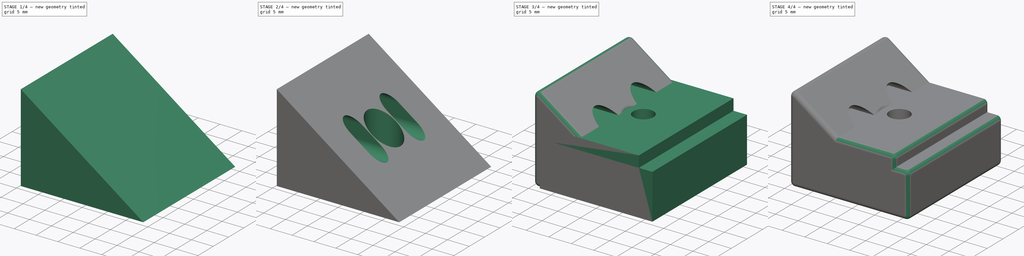
[diagram: build sequence overview — one tinted view per stage of 4, left to right]
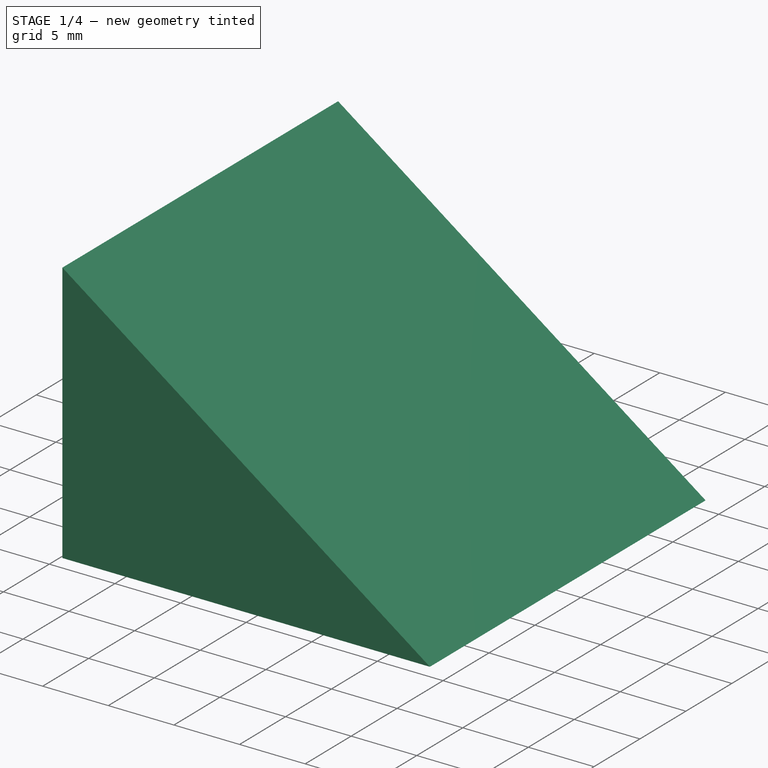
[diagram: stage 1 of 4 — iso view after this stage's code; geometry added in this stage tinted green]
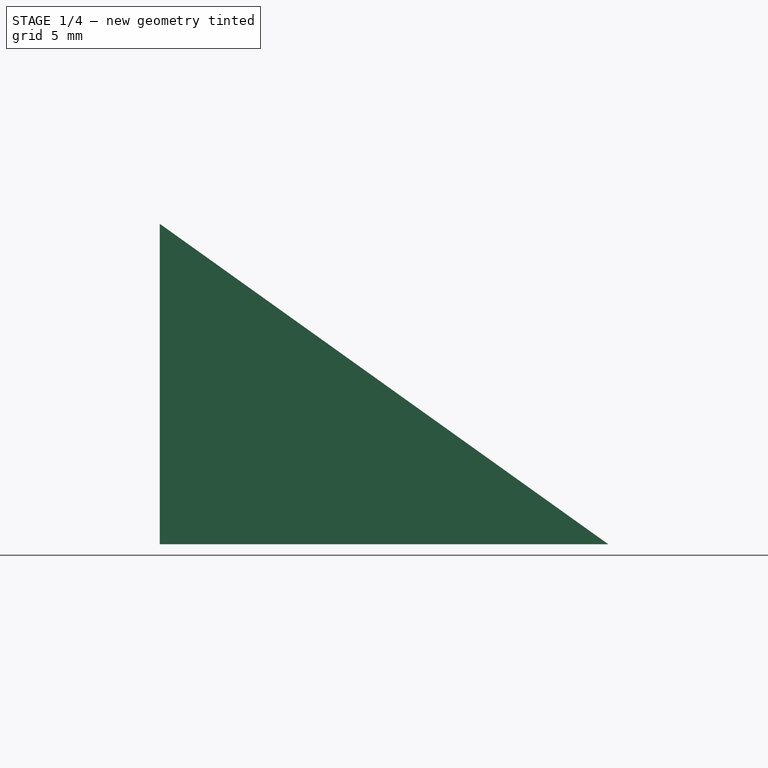
[diagram: stage 1 of 4 — front view after this stage's code; geometry added in this stage tinted green]
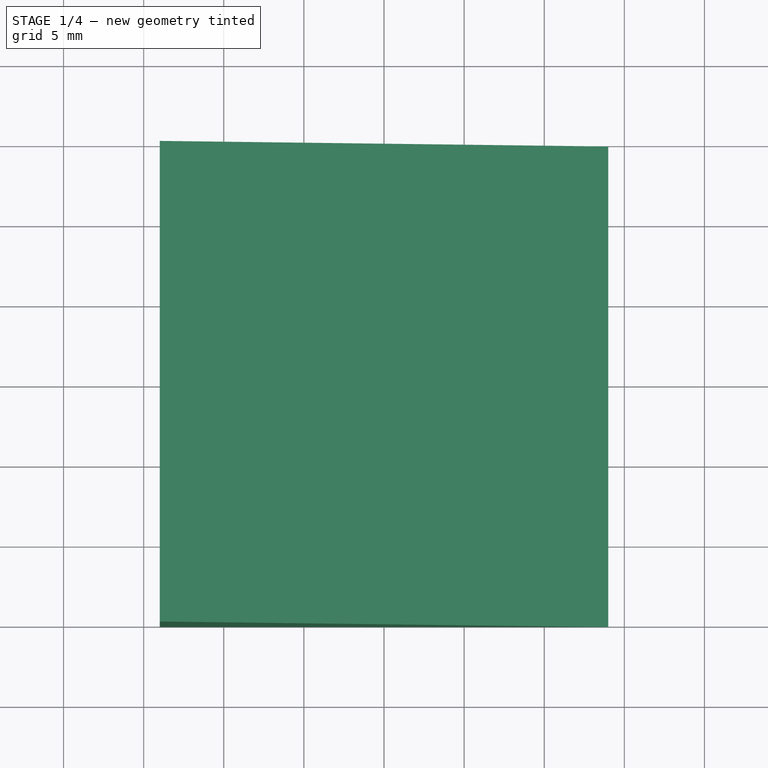
[diagram: stage 1 of 4 — top view after this stage's code; geometry added in this stage tinted green]
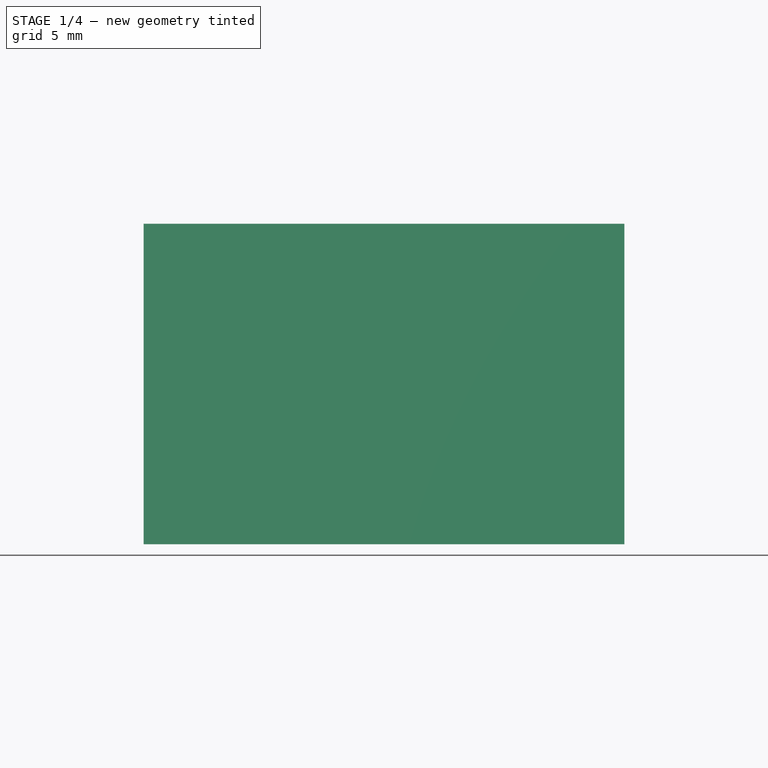
[diagram: stage 1 of 4 — right view after this stage's code; geometry added in this stage tinted green]
FCSTD DOCUMENT  (FreeCAD 0.18.3R)
Label: ShadeHolder
License: All rights reserved
LicenseURL: http://en.wikipedia.org/wiki/All_rights_reserved
objects: Sketcher::SketchObject×8, PartDesign::Pocket×6, PartDesign::Pad×2, PartDesign::Fillet×2, PartDesign::Body×2, Spreadsheet::Sheet×1, App::Part×1
note: 28 computed .brp shape members not serialized (recipe doc carries the construction recipe); baked Part::Feature solids carry a one-line shape summary decoded from their .brp

FEATURE [Sketcher::SketchObject] Sketch
  MapMode = 5
  Placement = pos=(0,0,0) rot=(1,0,0;1.5708rad)
  Support = -> [XZ_Plane]
  sketch-geometry (11):
    g0: LineSegment StartX=-9.5 StartY=12.5 StartZ=0 EndX=9.5 EndY=12.5 EndZ=0
    g1: LineSegment StartX=9.5 StartY=12.5 StartZ=0 EndX=9.5 EndY=10 EndZ=0
    g2: LineSegment StartX=9.5 StartY=10 StartZ=0 EndX=12.5 EndY=10 EndZ=0
    g3: LineSegment StartX=12.5 StartY=10 StartZ=0 EndX=12.5 EndY=0 EndZ=0
    g4: LineSegment StartX=12.5 StartY=0 StartZ=0 EndX=-12.5 EndY=0 EndZ=0
    g5: LineSegment StartX=-12.5 StartY=0 StartZ=0 EndX=-12.5 EndY=10 EndZ=0
    g6: LineSegment StartX=-12.5 StartY=10 StartZ=0 EndX=-9.5 EndY=10 EndZ=0
    g7: LineSegment StartX=-9.5 StartY=10 StartZ=0 EndX=-9.5 EndY=12.5 EndZ=0
    g8: LineSegment [constr] StartX=-12.5 StartY=10 StartZ=0 EndX=-12.5 EndY=12.5 EndZ=0
    g9: LineSegment [constr] StartX=-12.5 StartY=12.5 StartZ=0 EndX=-9.5 EndY=12.5 EndZ=0
    g10: GeomPoint X=0 Y=0 Z=0
  constraints (30):
    c: Horizontal(g0)
    c: Coincident(g0,g1)
    c: Vertical(g1)
    c: Coincident(g1,g2)
    c: Horizontal(g2)
    c: Coincident(g2,g3)
    c: Vertical(g3)
    c: Coincident(g3,g4)
    c: Horizontal(g4)
    c: Coincident(g4,g5)
    c: Vertical(g5)
    c: Coincident(g5,g6)
    c: Horizontal(g6)
    c: Coincident(g6,g7)
    c: Coincident(g7,g0)
    c: Vertical(g7)
    c: Equal(g6,g2)
    c: DistanceX(g0,g0) = 19
    c: DistanceX(g5,g2) = 25
    c: DistanceY(g1,g1) = 2.5
    c: Equal(g1,g7)
    c: DistanceY(g5,g5) = 10
    c: Coincident(g5,g8)
    c: Vertical(g8)
    c: Coincident(g8,g9)
    c: Coincident(g9,g0)
    c: Horizontal(g9)
    c: Symmetric(g3,g4,g10)
    c: DistanceY(g3,g0) = 12.5  'Height'
    c: Coincident(g10,g-1)  '__ANCHOR__'
FEATURE [PartDesign::Pad] Pad
  Length = 30
  Length2 = 100
  Midplane = true
  Placement = pos=(0,0,0) rot=(1,0,0;1.5708rad)
  Profile = -> Sketch
  Type = 0
FEATURE [PartDesign::Body] Body
  Group = -> [Sketch,Pad,Sketch001,Pocket,Sketch002,Pocket001,Fillet]
  Origin = -> Origin
  Tip = -> Fillet
FEATURE [Sketcher::SketchObject] Sketch003
  MapMode = 5
  Placement = pos=(0,0,0) rot=(1,0,0;1.5708rad)
  Support = -> [XZ_Plane002]
  sketch-geometry (3):
    g0: LineSegment StartX=-14 StartY=0 StartZ=0 EndX=14 EndY=0 EndZ=0
    g1: LineSegment StartX=14 StartY=0 StartZ=0 EndX=-14 EndY=20 EndZ=0
    g2: LineSegment StartX=-14 StartY=20 StartZ=0 EndX=-14 EndY=0 EndZ=0
  constraints (8):
    c: Horizontal(g0)
    c: Coincident(g0,g1)
    c: Coincident(g1,g2)
    c: Coincident(g2,g0)
    c: Vertical(g2)
    c: DistanceX(g0,g0) = 28  'Length'
    c: DistanceY(g2,g2) = 20  'Height'
    c: Symmetric(g0,g0,g-1)  '__ANCHOR__'
FEATURE [PartDesign::Pad] Pad001
  Length = 30
  Length2 = 100
  Midplane = true
  Placement = pos=(0,0,0) rot=(1,0,0;1.5708rad)
  Profile = -> Sketch003
  Type = 0
  expr: Length = Pad.Length
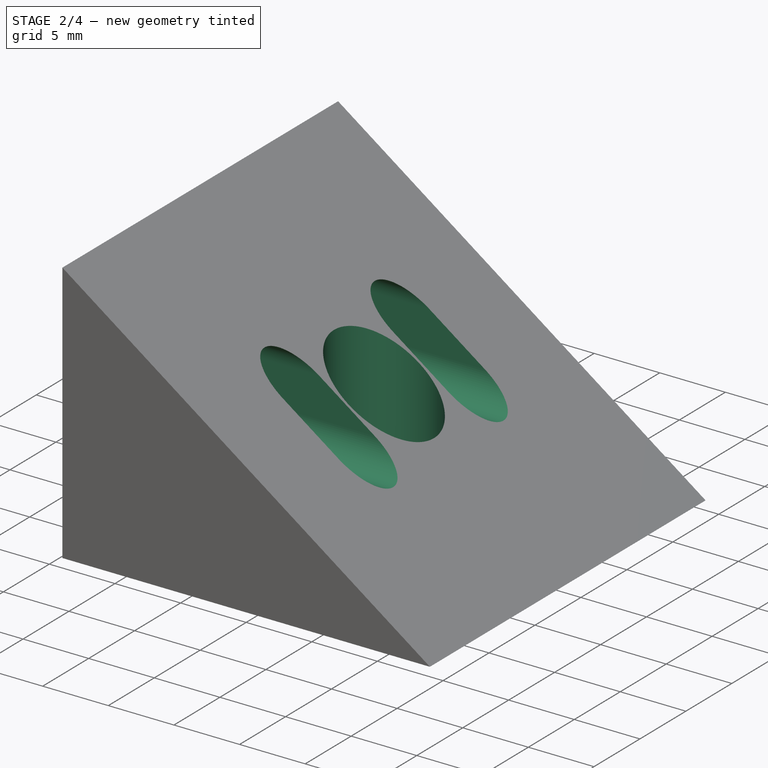
[diagram: stage 2 of 4 — iso view after this stage's code; geometry added in this stage tinted green]
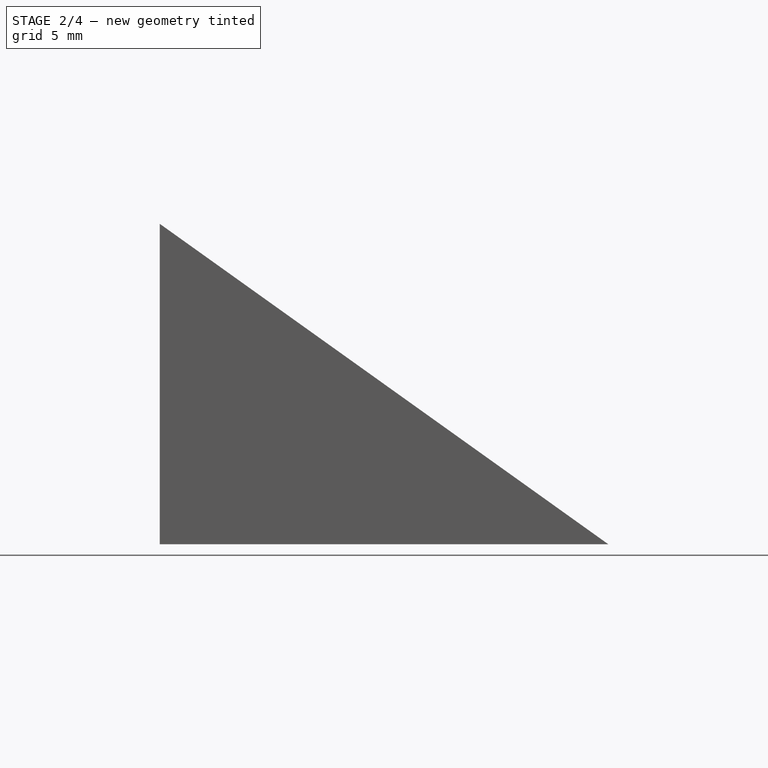
[diagram: stage 2 of 4 — front view after this stage's code; geometry added in this stage tinted green]
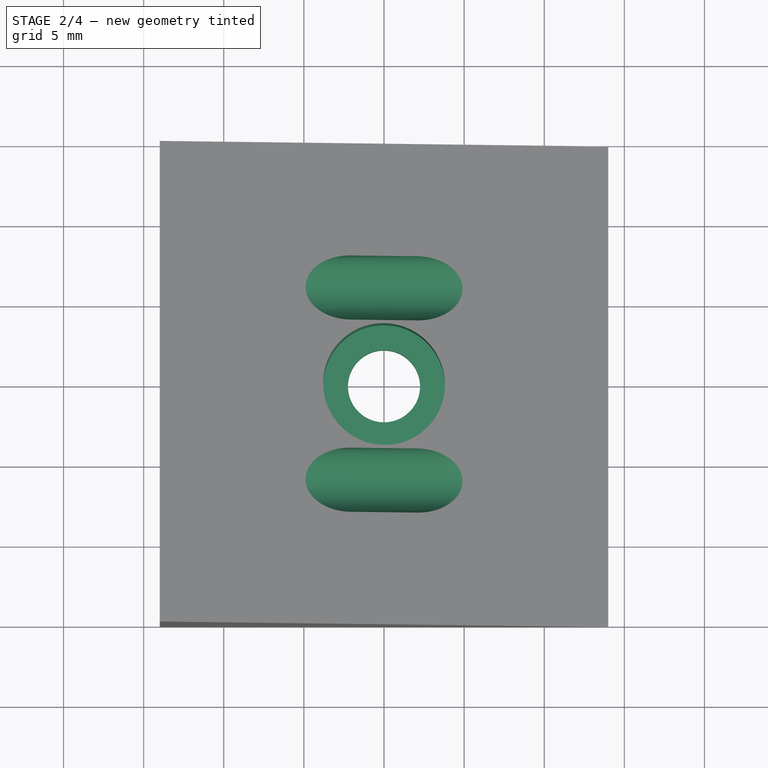
[diagram: stage 2 of 4 — top view after this stage's code; geometry added in this stage tinted green]
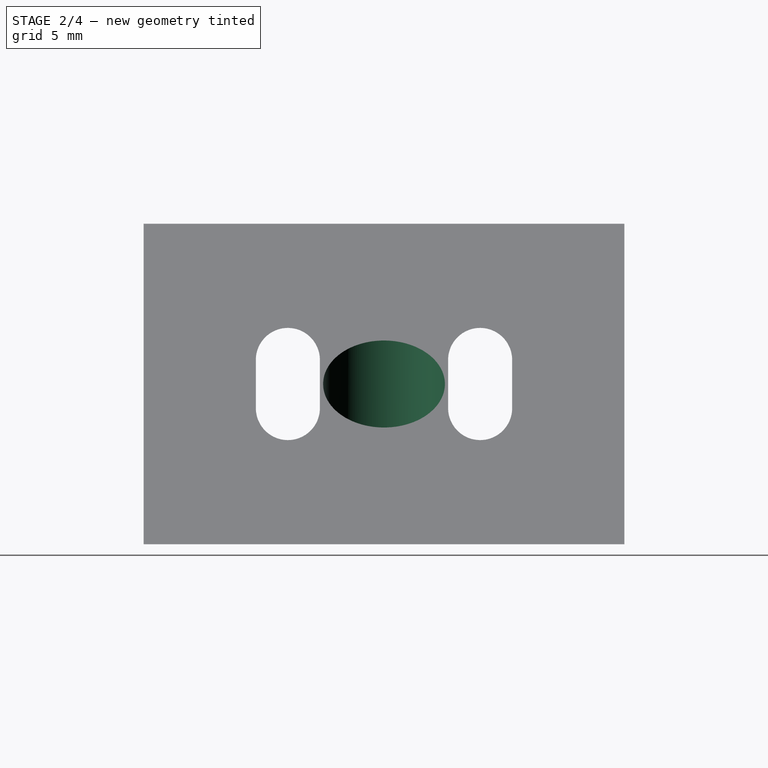
[diagram: stage 2 of 4 — right view after this stage's code; geometry added in this stage tinted green]
FEATURE [Sketcher::SketchObject] Sketch004
  MapMode = 5
  Support = -> [XY_Plane002]
  expr: Constraints[1] = Screws.M4Radius
  sketch-geometry (1):
    g0: Circle CenterX=0 CenterY=0 CenterZ=0 NormalX=0 NormalY=0 NormalZ=1 AngleXU=0 Radius=2.25
  constraints (2):
    c: Coincident(g0,g-1)
    c: Radius(g0) = 2.25
FEATURE [PartDesign::Pocket] Pocket002
  BaseFeature = -> Pad001
  Length = 5
  Length2 = 100
  Placement = pos=(0,0,0) rot=(1,0,0;1.5708rad)
  Profile = -> Sketch004
  Reversed = true
  Type = 1
FEATURE [Sketcher::SketchObject] Sketch005
  AttachmentOffset = pos=(0,0,2) rot=(0,0,1;0rad)
  MapMode = 5
  Placement = pos=(0,0,2) rot=(0,0,1;0rad)
  Support = -> [XY_Plane002]
  expr: Constraints[1] = Screws.M4HeadRadius
  sketch-geometry (1):
    g0: Circle CenterX=0 CenterY=0 CenterZ=0 NormalX=0 NormalY=0 NormalZ=1 AngleXU=0 Radius=3.8
  constraints (2):
    c: Coincident(g0,g-1)
    c: Radius(g0) = 3.8
FEATURE [PartDesign::Pocket] Pocket003
  BaseFeature = -> Pocket002
  Length = 5
  Length2 = 100
  Placement = pos=(0,0,0) rot=(1,0,0;1.5708rad)
  Profile = -> Sketch005
  Reversed = true
  Type = 1
FEATURE [Sketcher::SketchObject] Sketch006
  MapMode = 5
  Placement = pos=(0,0,0) rot=(0.57735,0.57735,0.57735;2.0944rad)
  Support = -> [YZ_Plane002]
  expr: Constraints.Offset = Sketch003.Constraints.Height / 2
  sketch-geometry (11):
    g0: LineSegment [constr] StartX=-6 StartY=10 StartZ=0 EndX=6 EndY=10 EndZ=0
    g1: ArcOfCircle CenterX=-6 CenterY=11.5 CenterZ=0 NormalX=0 NormalY=0 NormalZ=1 AngleXU=0 Radius=2 StartAngle=0 EndAngle=3.14159
    g2: ArcOfCircle CenterX=-6 CenterY=8.5 CenterZ=0 NormalX=0 NormalY=0 NormalZ=1 AngleXU=0 Radius=2 StartAngle=3.14159 EndAngle=6.28319
    g3: LineSegment StartX=-8 StartY=11.5 StartZ=0 EndX=-8 EndY=8.5 EndZ=0
    g4: LineSegment StartX=-4 StartY=11.5 StartZ=0 EndX=-4 EndY=8.5 EndZ=0
    g5: ArcOfCircle CenterX=6 CenterY=11.5 CenterZ=0 NormalX=0 NormalY=0 NormalZ=1 AngleXU=0 Radius=2 StartAngle=0 EndAngle=3.14159
    g6: ArcOfCircle CenterX=6 CenterY=8.5 CenterZ=0 NormalX=0 NormalY=0 NormalZ=1 AngleXU=0 Radius=2 StartAngle=3.14159 EndAngle=6.28319
    g7: LineSegment StartX=4 StartY=11.5 StartZ=0 EndX=4 EndY=8.5 EndZ=0
    g8: LineSegment StartX=8 StartY=11.5 StartZ=0 EndX=8 EndY=8.5 EndZ=0
    g9: GeomPoint X=-6 Y=10 Z=0
    g10: GeomPoint X=6 Y=10 Z=0
  constraints (23):
    c: DistanceX(g0,g0) = 12  'Distance'
    c: Symmetric(g0,g0,g-2)
    c: Tangent(g1,g4) = 1.5708
    c: Tangent(g1,g3) = -1.5708
    c: Tangent(g3,g2) = -1.5708
    c: Tangent(g4,g2) = 1.5708
    c: Vertical(g3)
    c: Equal(g1,g2)
    c: Tangent(g5,g8) = 1.5708
    c: Tangent(g5,g7) = -1.5708
    c: Tangent(g7,g6) = -1.5708
    c: Tangent(g8,g6) = 1.5708
    c: Vertical(g7)
    c: Equal(g5,g6)
    c: Equal(g1,g5)
    c: Equal(g7,g4)
    c: Symmetric(g6,g5,g10)
    c: Symmetric(g1,g2,g9)
    c: Coincident(g9,g0)
    c: Coincident(g10,g0)
    c: Radius(g5) = 2
    c: DistanceY(g8,g8) = 3  'HoleHeight'
    c: DistanceY(g-1,g9) = 10  'Offset'
FEATURE [PartDesign::Pocket] Pocket004
  BaseFeature = -> Pocket003
  Length = 5
  Length2 = 100
  Midplane = true
  Placement = pos=(0,0,0) rot=(1,0,0;1.5708rad)
  Profile = -> Sketch006
  Type = 1
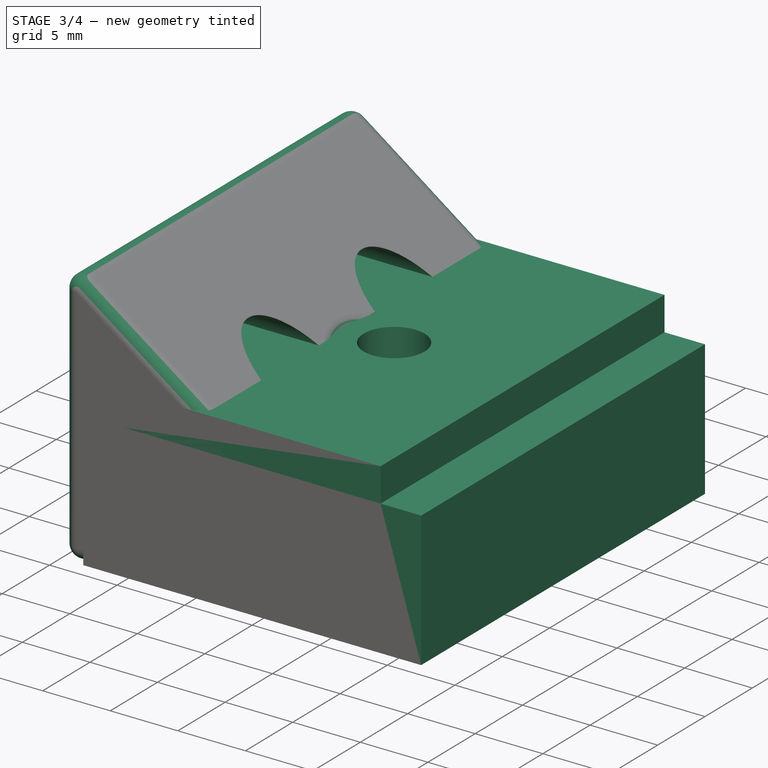
[diagram: stage 3 of 4 — iso view after this stage's code; geometry added in this stage tinted green]
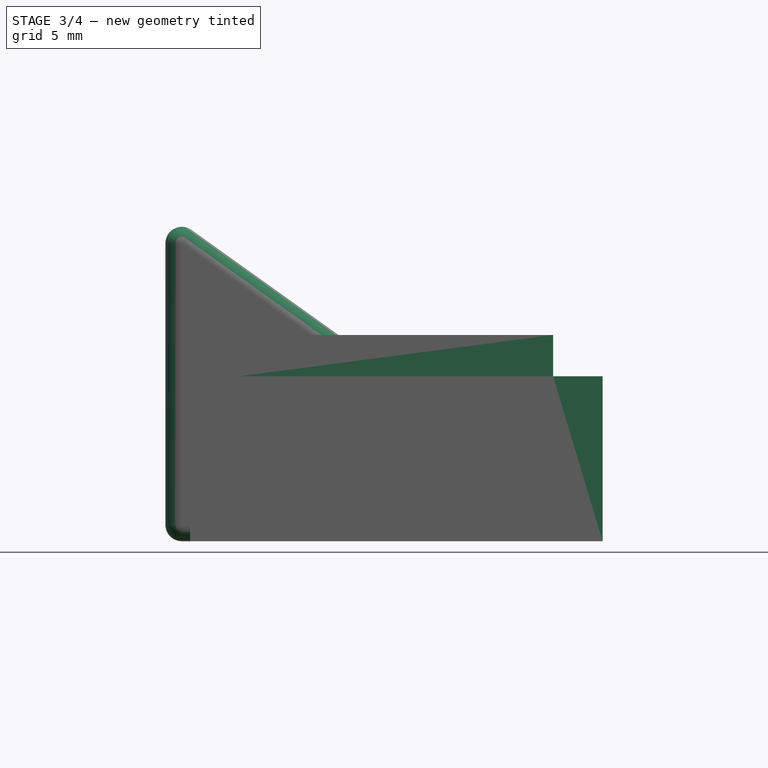
[diagram: stage 3 of 4 — front view after this stage's code; geometry added in this stage tinted green]
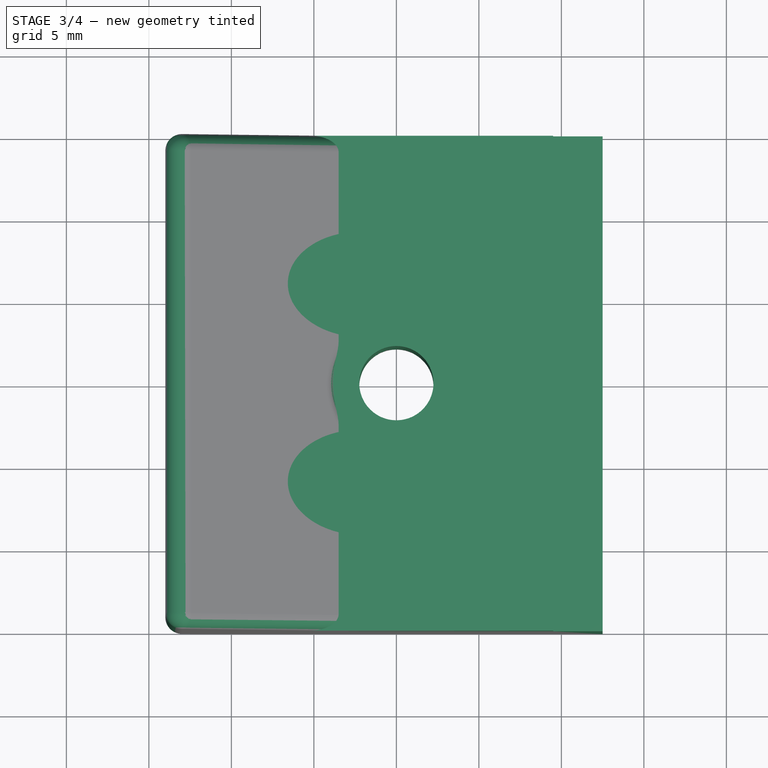
[diagram: stage 3 of 4 — top view after this stage's code; geometry added in this stage tinted green]
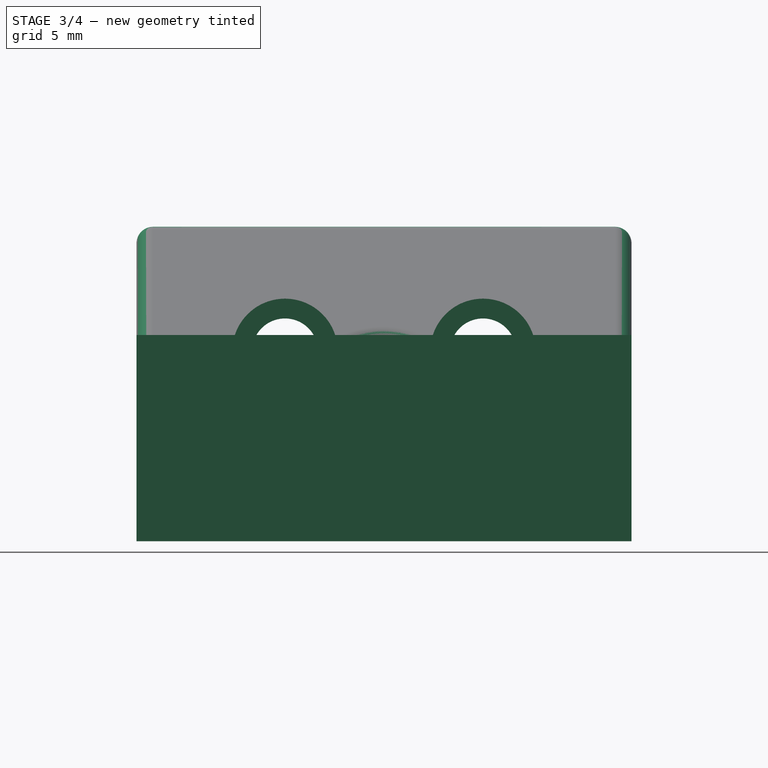
[diagram: stage 3 of 4 — right view after this stage's code; geometry added in this stage tinted green]
FEATURE [Sketcher::SketchObject] Sketch001
  MapMode = 5
  Support = -> [XY_Plane]
  expr: Constraints[1] = Screws.M4Radius
  sketch-geometry (1):
    g0: Circle CenterX=0 CenterY=0 CenterZ=0 NormalX=0 NormalY=0 NormalZ=1 AngleXU=0 Radius=2.25
  constraints (2):
    c: Coincident(g0,g-1)
    c: Radius(g0) = 2.25
FEATURE [Spreadsheet::Sheet] Spreadsheet001  label="Screws"
  cells = B2=M3Radius; C2(M3Radius)==1.75mm; B3=M3HeadRadius; C3(M3HeadRadius)==3mm; B4=M3HeadHeight; C4(M3HeadHeight)==3.4mm; B5=M3NutRadius; C5(M3NutRadius)==3.4mm; B6=M3NutHeight; C6(M3NutHeight)==2.6mm; B7=M3NutDuctWidth; C7(M3NutDuctWidth)==6mm; B8=M4Radius; C8(M4Radius)==2.25mm; B9=M4HeadRadius; C9(M4HeadRadius)==3.8mm; B10=M4HeadHeight; C10(M4HeadHeight)==4mm; B11=M4NutRadius; C11(M4NutRadius)==4.2mm; B12=M4NutHeight; C12(M4NutHeight)==3.3mm; B13=M5Radius; C13(M5Radius)==2.66mm; B14=M5HeadRadius; C14(M5HeadRadius)==4.5mm; B15=M5HeadHeight; C15(M5HeadHeight)==5mm; B16=M5NutRadius; C16(M5NutRadius)==4.75mm; B17=M5NutHeight; C17(M5NutHeight)==4mm
FEATURE [PartDesign::Pocket] Pocket
  BaseFeature = -> Pad
  Length = 5
  Length2 = 100
  Placement = pos=(0,0,0) rot=(1,0,0;1.5708rad)
  Profile = -> Sketch001
  Reversed = true
  Type = 1
FEATURE [Sketcher::SketchObject] Sketch007
  AttachmentOffset = pos=(0,0,-12) rot=(0,0,1;0rad)
  MapMode = 5
  Placement = pos=(-12,2.7e-15,-2.7e-15) rot=(0.57735,0.57735,0.57735;2.0944rad)
  Support = -> [YZ_Plane002]
  expr: AttachmentOffset.Base.z = -Sketch003.Constraints.Length / 2 + 2mm
  expr: Constraints[0] = Sketch006.Constraints.Distance
  expr: Constraints.HH = Sketch006.Constraints.HoleHeight
  expr: Constraints[22] = Sketch006.Constraints.Offset
  sketch-geometry (11):
    g0: LineSegment [constr] StartX=-6 StartY=10 StartZ=0 EndX=6 EndY=10 EndZ=0
    g1: ArcOfCircle CenterX=-6 CenterY=11.5 CenterZ=0 NormalX=0 NormalY=0 NormalZ=1 AngleXU=0 Radius=3.2 StartAngle=0 EndAngle=3.14159
    g2: ArcOfCircle CenterX=-6 CenterY=8.5 CenterZ=0 NormalX=0 NormalY=0 NormalZ=1 AngleXU=0 Radius=3.2 StartAngle=3.14159 EndAngle=6.28319
    g3: LineSegment StartX=-9.2 StartY=11.5 StartZ=0 EndX=-9.2 EndY=8.5 EndZ=0
    g4: LineSegment StartX=-2.8 StartY=11.5 StartZ=0 EndX=-2.8 EndY=8.5 EndZ=0
    g5: ArcOfCircle CenterX=6 CenterY=11.5 CenterZ=0 NormalX=0 NormalY=0 NormalZ=1 AngleXU=0 Radius=3.2 StartAngle=1e-16 EndAngle=3.14159
    g6: ArcOfCircle CenterX=6 CenterY=8.5 CenterZ=0 NormalX=0 NormalY=0 NormalZ=1 AngleXU=0 Radius=3.2 StartAngle=3.14159 EndAngle=6.28319
    g7: LineSegment StartX=2.8 StartY=11.5 StartZ=0 EndX=2.8 EndY=8.5 EndZ=0
    g8: LineSegment StartX=9.2 StartY=11.5 StartZ=0 EndX=9.2 EndY=8.5 EndZ=0
    g9: GeomPoint X=-6 Y=10 Z=0
    g10: GeomPoint X=6 Y=10 Z=0
  constraints (23):
    c: DistanceX(g0,g0) = 12
    c: Symmetric(g0,g0,g-2)
    c: Tangent(g1,g4) = 1.5708
    c: Tangent(g1,g3) = -1.5708
    c: Tangent(g3,g2) = -1.5708
    c: Tangent(g4,g2) = 1.5708
    c: Vertical(g3)
    c: Equal(g1,g2)
    c: Tangent(g5,g8) = 1.5708
    c: Tangent(g5,g7) = -1.5708
    c: Tangent(g7,g6) = -1.5708
    c: Tangent(g8,g6) = 1.5708
    c: Vertical(g7)
    c: Equal(g5,g6)
    c: Equal(g1,g5)
    c: Equal(g7,g4)
    c: Symmetric(g6,g5,g10)
    c: Symmetric(g1,g2,g9)
    c: Coincident(g9,g0)
    c: Coincident(g10,g0)
    c: Radius(g5) = 3.2
    c: DistanceY(g8,g8) = 3  'HH'
    c: DistanceY(g-1,g9) = 10
FEATURE [PartDesign::Pocket] Pocket005
  BaseFeature = -> Pocket004
  Length = 5
  Length2 = 100
  Placement = pos=(0,0,0) rot=(1,0,0;1.5708rad)
  Profile = -> Sketch007
  Refine = true
  Reversed = true
  Type = 1
FEATURE [PartDesign::Fillet] Fillet001
  Base = -> Pocket005 [Face4,Face3,Edge6,Edge4,Edge1,Edge23,Edge27]
  BaseFeature = -> Pocket005
  Placement = pos=(0,0,0) rot=(1,0,0;1.5708rad)
  Radius = 1
FEATURE [PartDesign::Body] Body001
  Group = -> [Sketch003,Pad001,Sketch004,Pocket002,Sketch005,Pocket003,Sketch006,Pocket004,Sketch007,Pocket005,Fillet001]
  Origin = -> Origin002
  Placement = pos=(0,0,12.5) rot=(0,0,1;0rad)
  Tip = -> Fillet001
  expr: Placement.Base.z = Sketch.Constraints.Height
FEATURE [App::Part] Part
  Group = -> [Body,Body001]
  Origin = -> Origin001
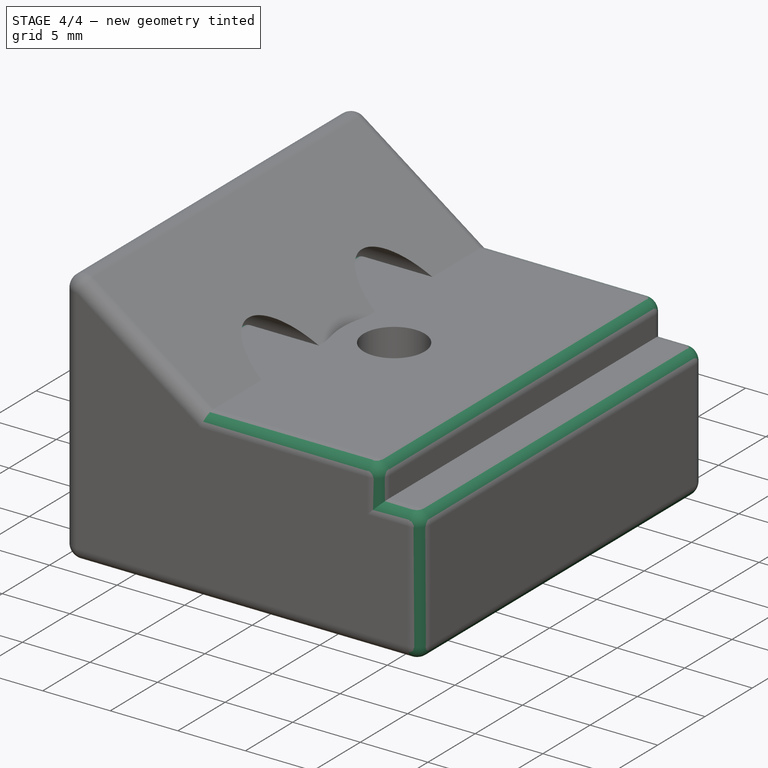
[diagram: stage 4 of 4 — iso view after this stage's code; geometry added in this stage tinted green]
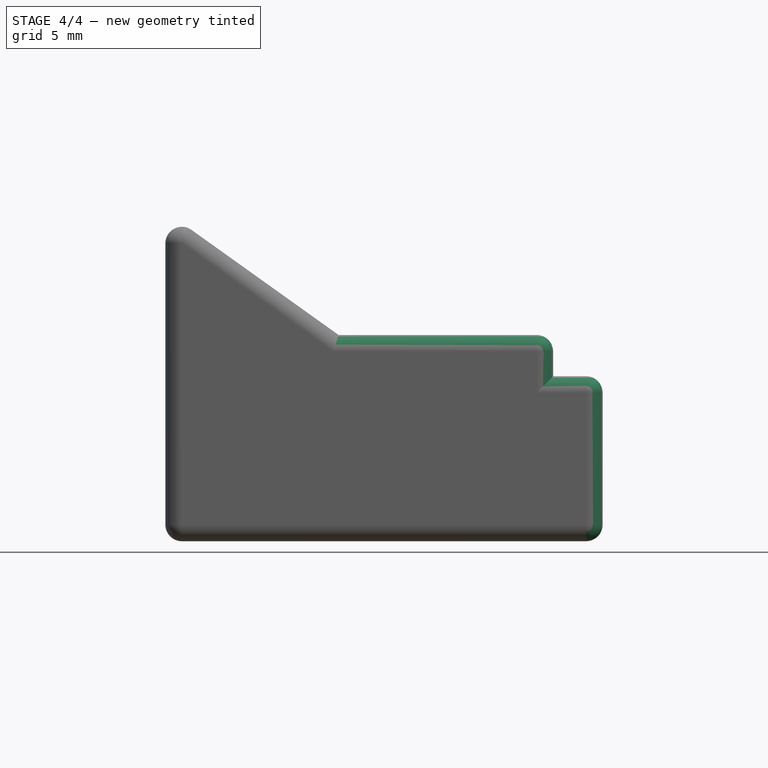
[diagram: stage 4 of 4 — front view after this stage's code; geometry added in this stage tinted green]
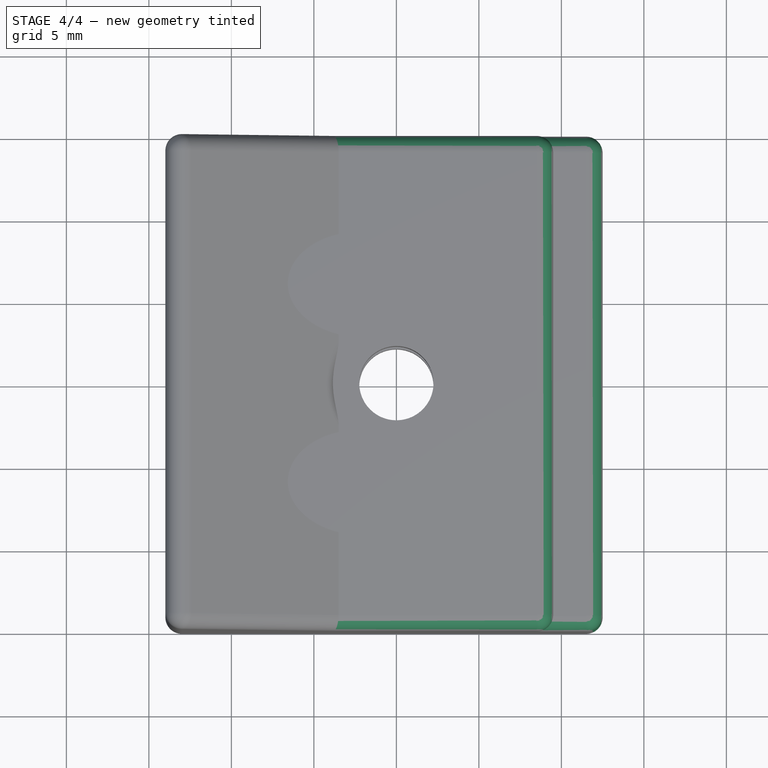
[diagram: stage 4 of 4 — top view after this stage's code; geometry added in this stage tinted green]
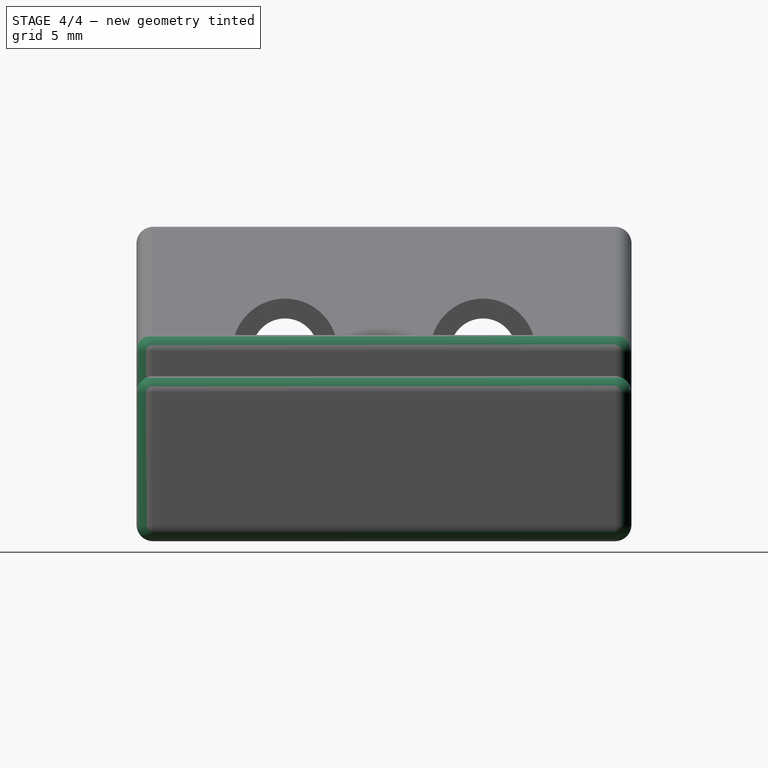
[diagram: stage 4 of 4 — right view after this stage's code; geometry added in this stage tinted green]
FEATURE [Sketcher::SketchObject] Sketch002
  MapMode = 5
  Support = -> [XY_Plane]
  expr: Constraints[18] = Screws.M4NutRadius
  sketch-geometry (7):
    g0: LineSegment StartX=4.2 StartY=-1.372e-13 StartZ=0 EndX=2.1 EndY=3.63731 EndZ=0
    g1: LineSegment StartX=2.1 StartY=3.63731 StartZ=0 EndX=-2.1 EndY=3.63731 EndZ=0
    g2: LineSegment StartX=-2.1 StartY=3.63731 StartZ=0 EndX=-4.2 EndY=5.542e-13 EndZ=0
    g3: LineSegment StartX=-4.2 StartY=5.542e-13 StartZ=0 EndX=-2.1 EndY=-3.63731 EndZ=0
    g4: LineSegment StartX=-2.1 StartY=-3.63731 StartZ=0 EndX=2.1 EndY=-3.63731 EndZ=0
    g5: LineSegment StartX=2.1 StartY=-3.63731 StartZ=0 EndX=4.2 EndY=-1.372e-13 EndZ=0
    g6: Circle [constr] CenterX=0 CenterY=0 CenterZ=0 NormalX=0 NormalY=0 NormalZ=1 AngleXU=0 Radius=4.2
  constraints (16):
    c: Coincident(g0,g1)
    c: Coincident(g1,g2)
    c: Coincident(g2,g3)
    c: Coincident(g3,g4)
    c: Coincident(g4,g5)
    c: Coincident(g5,g0)
    c: Equal(g0, g1-g5) x5
    c: PointOnObject(g0,g6)
    c: PointOnObject(g1,g6)
    c: PointOnObject(g2,g6)
    c: PointOnObject(g3,g6)
    c: PointOnObject(g4,g6)
    c: PointOnObject(g5,g6)
    c: Coincident(g6,g-1)
    c: Radius(g6) = 4.2
    c: Horizontal(g1)
FEATURE [PartDesign::Pocket] Pocket001
  BaseFeature = -> Pocket
  Length = 9.5
  Length2 = 100
  Placement = pos=(0,0,0) rot=(1,0,0;1.5708rad)
  Profile = -> Sketch002
  Reversed = true
  Type = 0
  expr: Length = Sketch.Constraints.Height - 3mm
FEATURE [PartDesign::Fillet] Fillet
  Base = -> Pocket001 [Face4,Face3,Face9,Face11,Edge1,Edge4]
  BaseFeature = -> Pocket001
  Placement = pos=(0,0,0) rot=(1,0,0;1.5708rad)
  Radius = 1
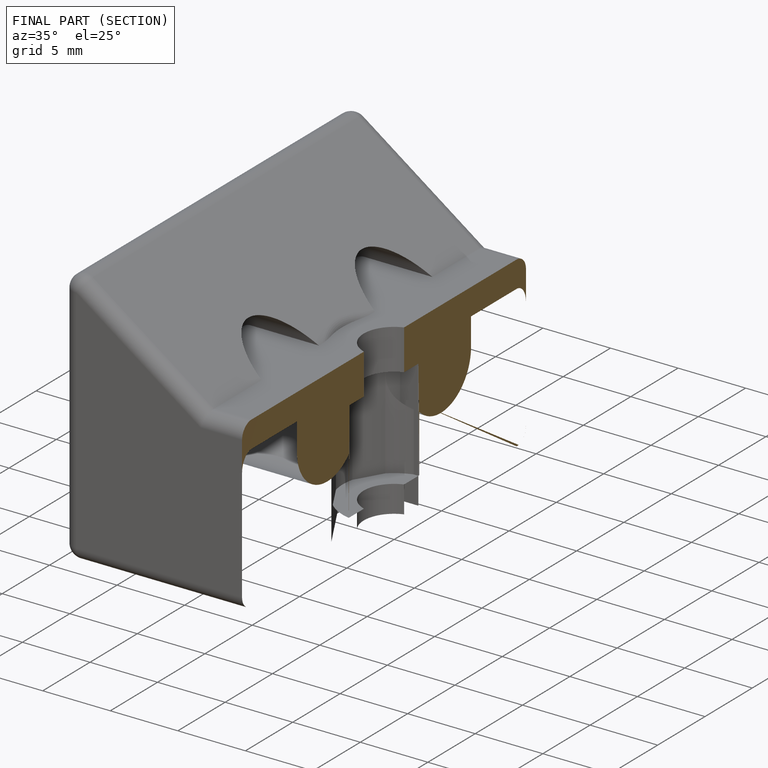
[diagram: finished part — half-section view (interior)]
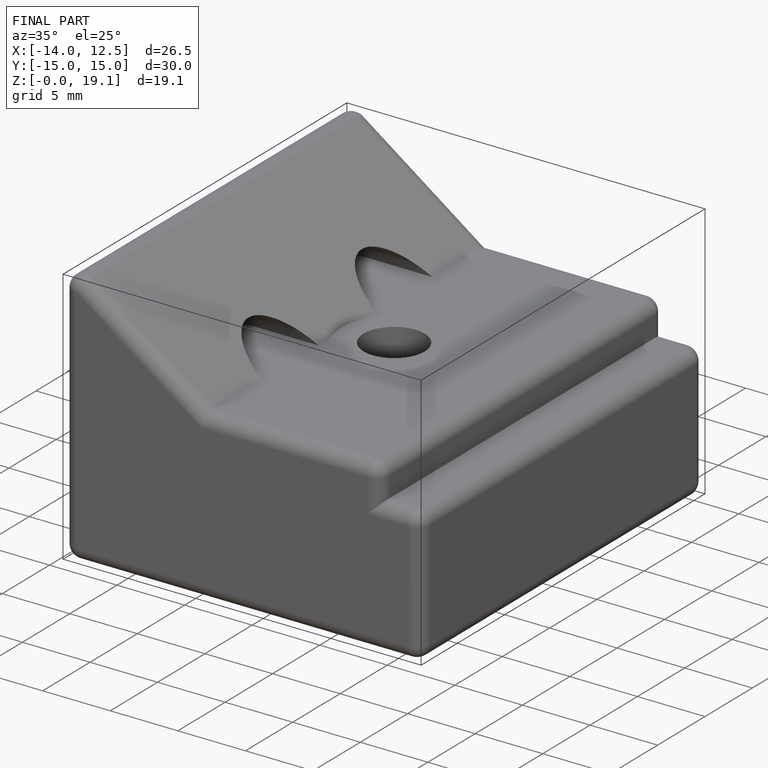
[diagram: finished part — iso view with bounding-box wireframe]
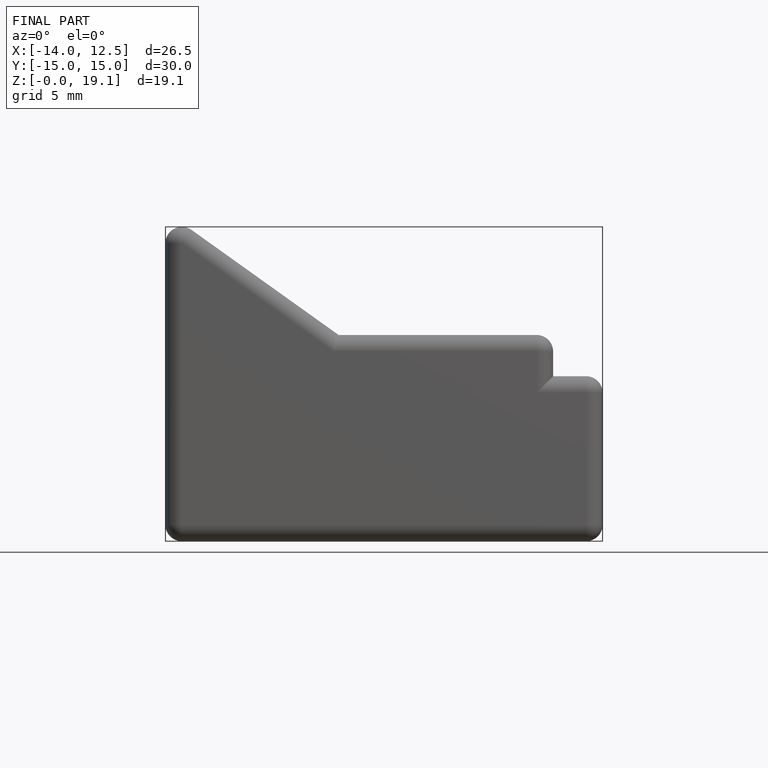
[diagram: finished part — front view with bounding-box wireframe]
